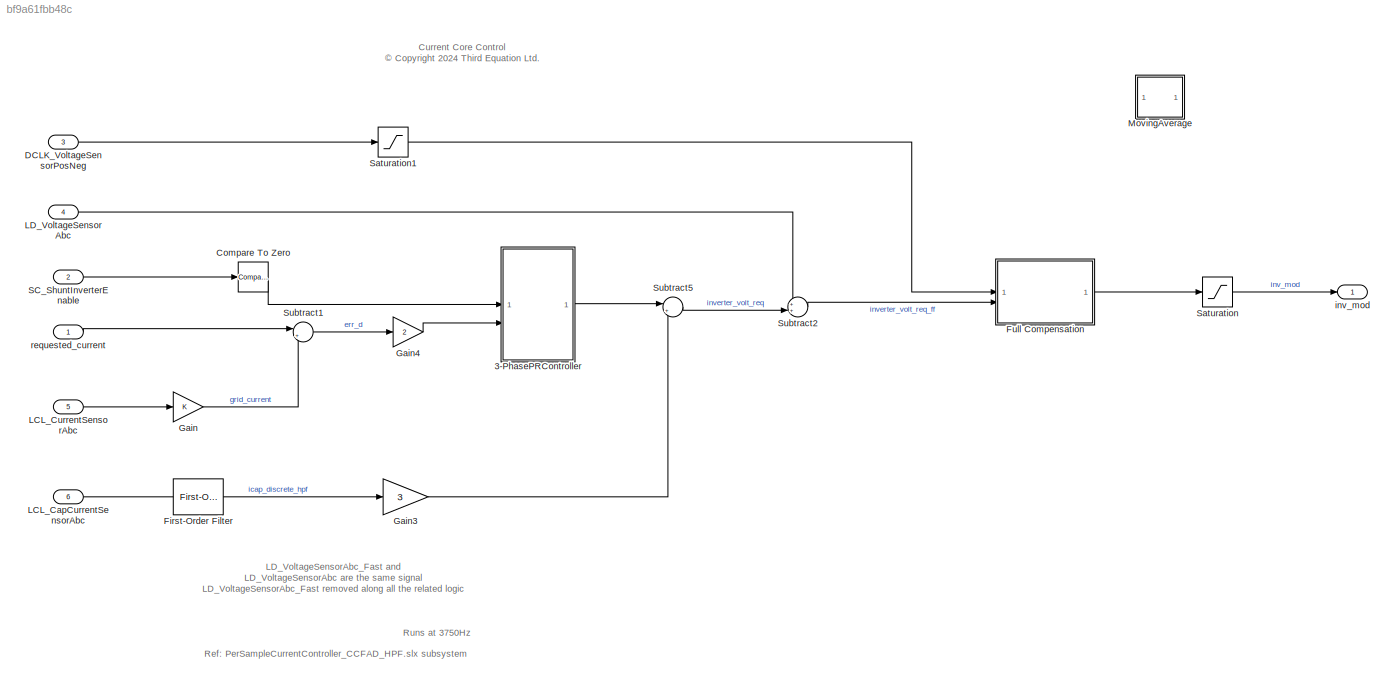
MODEL slx_bf9a61fbb48c
KIND model
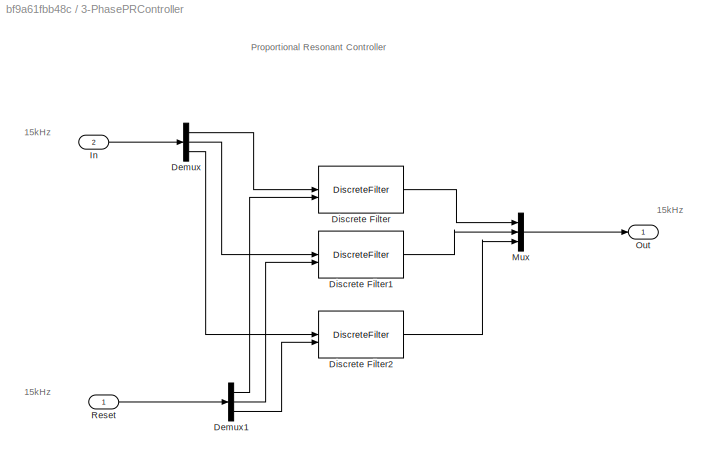
BLOCK [SubSystem] 3-PhasePRController
BLOCK [Demux] 3-PhasePRController/Demux
  Outputs = 3
BLOCK [Demux] 3-PhasePRController/Demux1
  Outputs = 3
BLOCK [DiscreteFilter] 3-PhasePRController/Discrete Filter
  Denominator = prCurrentCtrl.Den
  ExternalReset = Level
  InputPortMap = u0,r7
  Numerator = prCurrentCtrl.Num
BLOCK [DiscreteFilter] 3-PhasePRController/Discrete Filter1
  Denominator = prCurrentCtrl.Den
  ExternalReset = Level
  InputPortMap = u0,r7
  Numerator = prCurrentCtrl.Num
BLOCK [DiscreteFilter] 3-PhasePRController/Discrete Filter2
  Denominator = prCurrentCtrl.Den
  ExternalReset = Level
  InputPortMap = u0,r7
  Numerator = prCurrentCtrl.Num
BLOCK [Inport] 3-PhasePRController/In
  Port = 2
BLOCK [Mux] 3-PhasePRController/Mux
  DisplayOption = bar
  Inputs = 3
BLOCK [Outport] 3-PhasePRController/Out
BLOCK [Inport] 3-PhasePRController/Reset
BLOCK [Reference] Compare To Zero  REF=simulink/Logic and Bit
Operations/Compare
To Zero
  SourceBlock = simulink/Logic and Bit\nOperations/Compare\nTo Zero
  SourceType = Compare To Zero
BLOCK [Inport] DCLK_VoltageSensorPosNeg
  OutDataTypeStr = single
  Port = 3
  PortDimensions = 2
BLOCK [Reference] First-Order Filter  REF=spsFirstOrderFilterLib/First-Order
Filter
  NameLocation = top
  SourceBlock = spsFirstOrderFilterLib/First-Order\nFilter
  SourceType = First-Order Filter
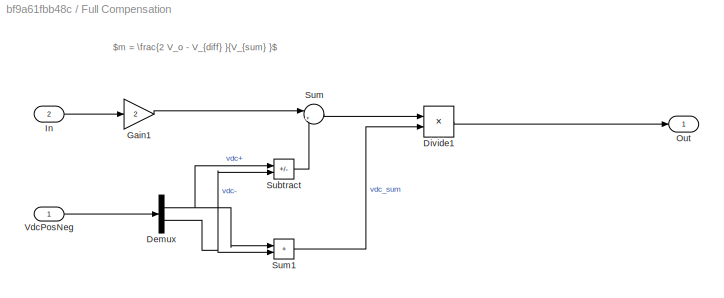
BLOCK [SubSystem] Full Compensation
BLOCK [Demux] Full Compensation/Demux
  Outputs = 2
BLOCK [Product] Full Compensation/Divide1
  Inputs = */
  OutDataTypeStr = single
BLOCK [Gain] Full Compensation/Gain1
  Gain = 2
BLOCK [Inport] Full Compensation/In
  Port = 2
BLOCK [Outport] Full Compensation/Out
BLOCK [Sum] Full Compensation/Subtract
  IconShape = rectangular
  Inputs = +-
BLOCK [Sum] Full Compensation/Sum
  Inputs = |++
BLOCK [Sum] Full Compensation/Sum1
  IconShape = rectangular
BLOCK [Inport] Full Compensation/VdcPosNeg
BLOCK [Gain] Gain
BLOCK [Gain] Gain3
  Gain = 3
  NameLocation = top
BLOCK [Gain] Gain4
  Gain = 2
BLOCK [Inport] LCL_CapCurrentSensorAbc
  OutDataTypeStr = single
  Port = 6
  PortDimensions = 3
BLOCK [Inport] LCL_CurrentSensorAbc
  OutDataTypeStr = single
  Port = 5
  PortDimensions = 3
BLOCK [Inport] LD_VoltageSensorAbc
  OutDataTypeStr = single
  Port = 4
  PortDimensions = 3
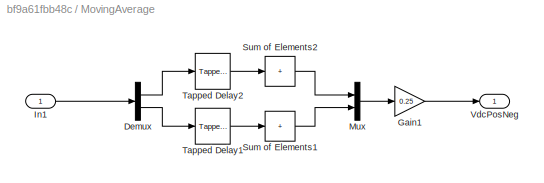
BLOCK [SubSystem] MovingAverage
  Commented = through
BLOCK [Demux] MovingAverage/Demux
  Outputs = 2
BLOCK [Gain] MovingAverage/Gain1
  Gain = 0.25
BLOCK [Inport] MovingAverage/In1
BLOCK [Mux] MovingAverage/Mux
  DisplayOption = bar
  Inputs = 2
BLOCK [Sum] MovingAverage/Sum of Elements1
  IconShape = rectangular
  Inputs = +
BLOCK [Sum] MovingAverage/Sum of Elements2
  IconShape = rectangular
  Inputs = +
BLOCK [Reference] MovingAverage/Tapped Delay1  REF=simulink/Discrete/Tapped Delay
  SourceBlock = simulink/Discrete/Tapped Delay
  SourceType = Tapped Delay Line
BLOCK [Reference] MovingAverage/Tapped Delay2  REF=simulink/Discrete/Tapped Delay
  SourceBlock = simulink/Discrete/Tapped Delay
  SourceType = Tapped Delay Line
BLOCK [Outport] MovingAverage/VdcPosNeg
BLOCK [Inport] SC_ShuntInverterEnable
  OutDataTypeStr = boolean
  Port = 2
  PortDimensions = 3
BLOCK [Saturate] Saturation
  LowerLimit = -1
  OutDataTypeStr = single
  UpperLimit = 1
BLOCK [Saturate] Saturation1
  LowerLimit = DC_ff_min
  UpperLimit = DC_ff_max
BLOCK [Sum] Subtract1
  Inputs = |+-
BLOCK [Sum] Subtract2
  Inputs = ++|
BLOCK [Sum] Subtract5
  Inputs = |+-
BLOCK [Outport] inv_mod
  OutDataTypeStr = single
  PortDimensions = 3
BLOCK [Inport] requested_current
  OutDataTypeStr = single
  PortDimensions = 3
ANNOTATION (root): Current Core Control <copyright redacted>
ANNOTATION (root): Runs at 3750Hz
ANNOTATION (root): LD_VoltageSensorAbc_Fast and LD_VoltageSensorAbc are the same signal LD_VoltageSensorAbc_Fast removed along all the related logic
ANNOTATION (root): Ref: PerSampleCurrentController_CCFAD_HPF.slx subsystem
ANNOTATION 3-PhasePRController: 15kHz
ANNOTATION 3-PhasePRController: Proportional Resonant Controller
ANNOTATION Full Compensation: $m = \frac{2 V_o - V_{diff} }{V_{sum} }$
LINE 3-PhasePRController/Demux1:1 -> 3-PhasePRController/Discrete Filter:2
LINE 3-PhasePRController/Demux1:2 -> 3-PhasePRController/Discrete Filter1:2
LINE 3-PhasePRController/Demux1:3 -> 3-PhasePRController/Discrete Filter2:2
LINE 3-PhasePRController/Demux:1 -> 3-PhasePRController/Discrete Filter:1
LINE 3-PhasePRController/Demux:2 -> 3-PhasePRController/Discrete Filter1:1
LINE 3-PhasePRController/Demux:3 -> 3-PhasePRController/Discrete Filter2:1
LINE 3-PhasePRController/Discrete Filter1:1 -> 3-PhasePRController/Mux:2
LINE 3-PhasePRController/Discrete Filter2:1 -> 3-PhasePRController/Mux:3
LINE 3-PhasePRController/Discrete Filter:1 -> 3-PhasePRController/Mux:1
LINE 3-PhasePRController/In:1 -> 3-PhasePRController/Demux:1
LINE 3-PhasePRController/Mux:1 -> 3-PhasePRController/Out:1
LINE 3-PhasePRController/Reset:1 -> 3-PhasePRController/Demux1:1
LINE 3-PhasePRController:1 -> Subtract5:1
LINE Compare To Zero:1 -> 3-PhasePRController:1
LINE DCLK_VoltageSensorPosNeg:1 -> Saturation1:1
LINE First-Order Filter:1 -> Gain3:1
NET Full Compensation/Demux:1 -> Full Compensation/Subtract:1, Full Compensation/Sum1:1
NET Full Compensation/Demux:2 -> Full Compensation/Subtract:2, Full Compensation/Sum1:2
LINE Full Compensation/Divide1:1 -> Full Compensation/Out:1
LINE Full Compensation/Gain1:1 -> Full Compensation/Sum:1
LINE Full Compensation/In:1 -> Full Compensation/Gain1:1
LINE Full Compensation/Subtract:1 -> Full Compensation/Sum:2
LINE Full Compensation/Sum1:1 -> Full Compensation/Divide1:2
LINE Full Compensation/Sum:1 -> Full Compensation/Divide1:1
LINE Full Compensation/VdcPosNeg:1 -> Full Compensation/Demux:1
LINE Full Compensation:1 -> Saturation:1
LINE Gain3:1 -> Subtract5:2
LINE Gain4:1 -> 3-PhasePRController:2
LINE Gain:1 -> Subtract1:2
LINE LCL_CapCurrentSensorAbc:1 -> First-Order Filter:1
LINE LCL_CurrentSensorAbc:1 -> Gain:1
LINE LD_VoltageSensorAbc:1 -> Subtract2:1
LINE MovingAverage/Demux:1 -> MovingAverage/Tapped Delay2:1
LINE MovingAverage/Demux:2 -> MovingAverage/Tapped Delay1:1
LINE MovingAverage/Gain1:1 -> MovingAverage/VdcPosNeg:1
LINE MovingAverage/In1:1 -> MovingAverage/Demux:1
LINE MovingAverage/Mux:1 -> MovingAverage/Gain1:1
LINE MovingAverage/Sum of Elements1:1 -> MovingAverage/Mux:2
LINE MovingAverage/Sum of Elements2:1 -> MovingAverage/Mux:1
LINE MovingAverage/Tapped Delay1:1 -> MovingAverage/Sum of Elements1:1
LINE MovingAverage/Tapped Delay2:1 -> MovingAverage/Sum of Elements2:1
LINE SC_ShuntInverterEnable:1 -> Compare To Zero:1
LINE Saturation1:1 -> Full Compensation:1
LINE Saturation:1 -> inv_mod:1
LINE Subtract1:1 -> Gain4:1
LINE Subtract2:1 -> Full Compensation:2
LINE Subtract5:1 -> Subtract2:2
LINE requested_current:1 -> Subtract1:1
note: NET lines group one-source signal fan-out (src -> all destinations, sorted); 1:1 wires keep LINE
